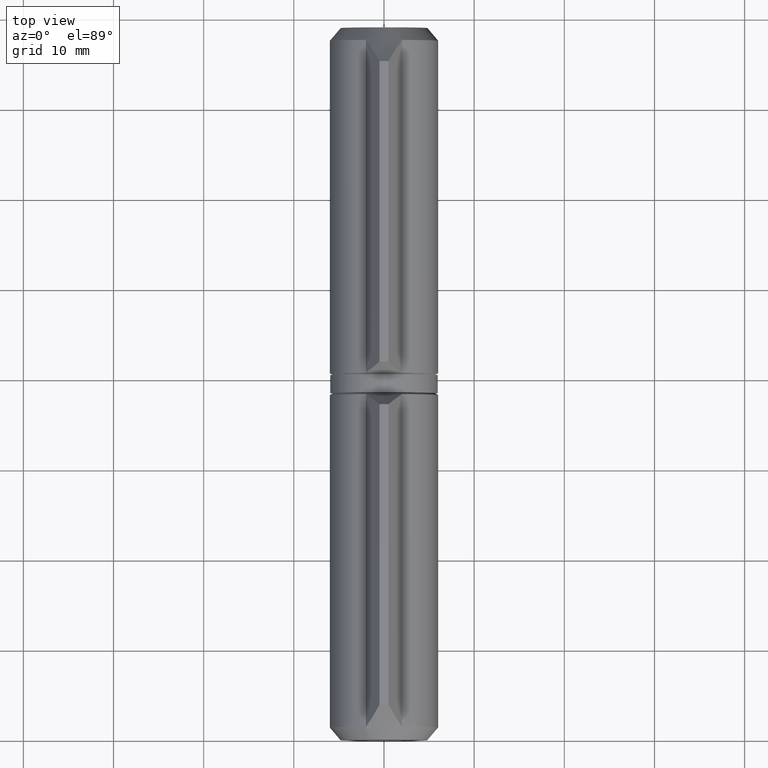
[diagram: clean part render]
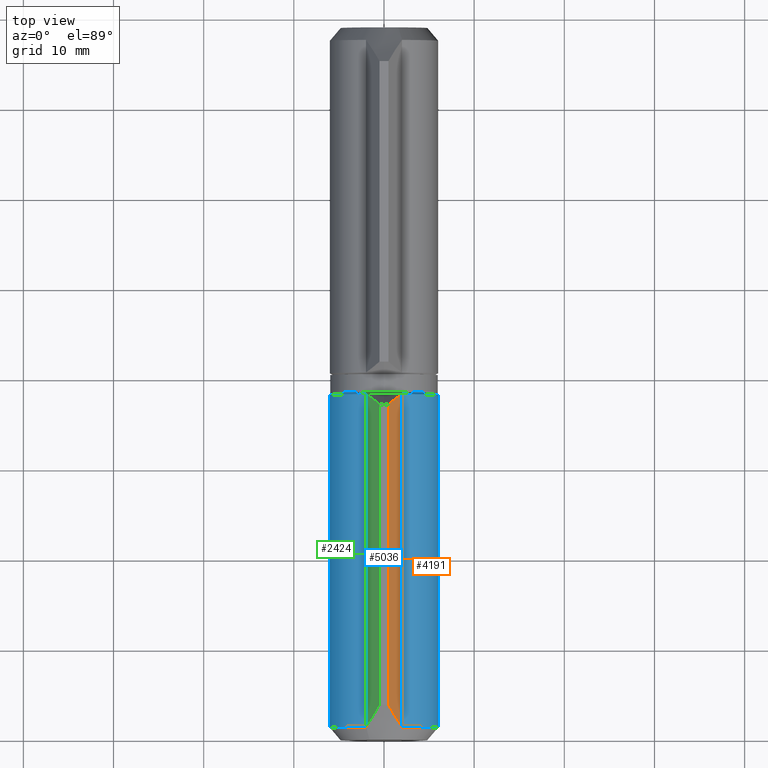
[diagram: same view with three faces highlighted in distinct colors, each labeled with its STEP entity id]
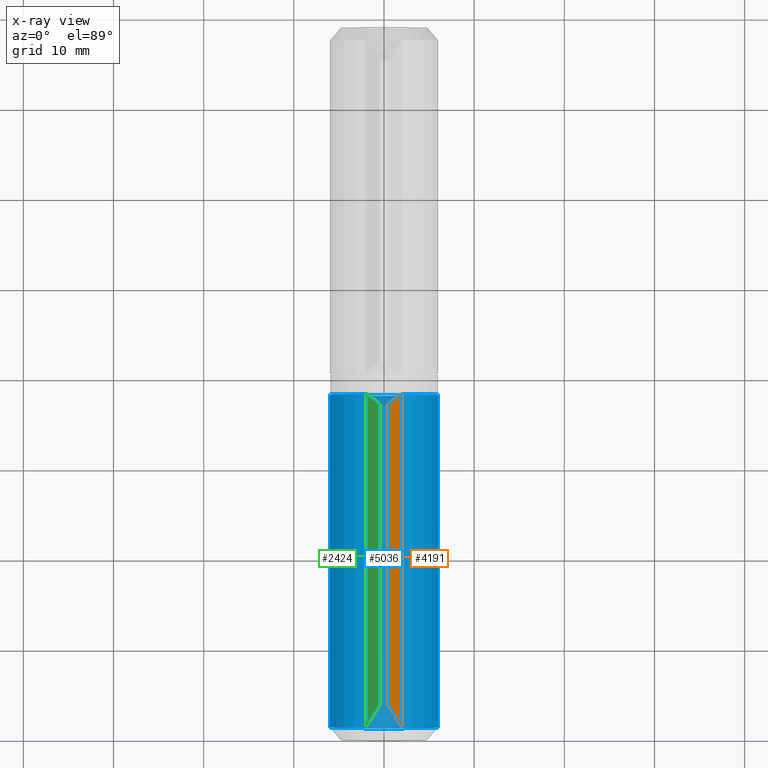
[diagram: x-ray of the same camera — body ghosted, the three highlighted faces saturated]
A machine part, top view with three faces highlighted in distinct colors.
The next image is the same camera in x-ray (body ghosted, the three faces saturated) — at least one of them is partly hidden behind the body in this view.
Their STEP definitions:

[orange] entity #4191 — the highlighted planar face has unit normal (0.8422, -0, 0.5392).
#448 = DIRECTION ( 'NONE',  ( -0.8422082845437647292, -2.431101475479423640E-15, -0.5391523026435565136 ) ) ;
#1212 = DIRECTION ( 'NONE',  ( 2.886579864025390439E-15, 1.000000000000000000, 0.000000000000000000 ) ) ;
#2138 = EDGE_CURVE ( 'NONE', #3184, #15834, #14271, .T. ) ;
#2361 = CARTESIAN_POINT ( 'NONE',  ( -0.4999999999998929745, 37.13817186473968235, -8.000000000000000000 ) ) ;
#2574 = VECTOR ( 'NONE', #1212, 1000.000000000000000 ) ;
#3168 = VERTEX_POINT ( 'NONE', #11890 ) ;
#3184 = VERTEX_POINT ( 'NONE', #2361 ) ;
#3199 = CARTESIAN_POINT ( 'NONE',  ( -0.9802601912863274647, 2.959338506171334870, -7.249786915766362583 ) ) ;
#4191 = ADVANCED_FACE ( 'NONE', ( #15868 ), #11483, .T. ) ;
#5039 = DIRECTION ( 'NONE',  ( 2.886579864025390439E-15, 1.000000000000000000, 0.000000000000000000 ) ) ;
#5494 = ORIENTED_EDGE ( 'NONE', *, *, #6073, .T. ) ;
#5655 = B_SPLINE_CURVE_WITH_KNOTS ( 'NONE', 3,
 ( #11503, #6063, #15628, #3199, #6004, #10129 ),
 .UNSPECIFIED., .F., .F.,
 ( 4, 2, 4 ),
 ( 0.008838318793687776481, 0.01068355474211885037, 0.01252879069054992252 ),
 .UNSPECIFIED. ) ;
#6004 = CARTESIAN_POINT ( 'NONE',  ( -0.7382496403727297762, 3.374371863819324524, -7.627830911733834540 ) ) ;
#6063 = CARTESIAN_POINT ( 'NONE',  ( -1.732366231721786720, 1.768573839175688667, -6.074924200714716171 ) ) ;
#6073 = EDGE_CURVE ( 'NONE', #3168, #15834, #11133, .T. ) ;
#7486 = AXIS2_PLACEMENT_3D ( 'NONE', #10055, #448, #8856 ) ;
#7696 = ORIENTED_EDGE ( 'NONE', *, *, #8947, .F. ) ;
#8386 = CARTESIAN_POINT ( 'NONE',  ( -1.744886245639352795, 38.13405865907720482, -6.055366722443388028 ) ) ;
#8472 = CARTESIAN_POINT ( 'NONE',  ( -0.4999999999999889533, 3.797242437181355790, -8.000000000000000000 ) ) ;
#8856 = DIRECTION ( 'NONE',  ( -0.5391523026435564026, -1.556306180453832801E-15, 0.8422082845437646181 ) ) ;
#8913 = VERTEX_POINT ( 'NONE', #8472 ) ;
#8947 = EDGE_CURVE ( 'NONE', #3168, #8913, #5655, .T. ) ;
#9585 = CARTESIAN_POINT ( 'NONE',  ( -0.9926046760006252967, 37.55623749635820019, -7.230503631166176781 ) ) ;
#9643 = CARTESIAN_POINT ( 'NONE',  ( -0.4999999999998929745, 37.13817186473968235, -8.000000000000000000 ) ) ;
#10055 = CARTESIAN_POINT ( 'NONE',  ( -2.000000000000011102, -4.635766604146771996, -5.656854249492380582 ) ) ;
#10129 = CARTESIAN_POINT ( 'NONE',  ( -0.4999999999999889533, 3.797242437181355790, -8.000000000000000000 ) ) ;
#11133 = LINE ( 'NONE', #17593, #2574 ) ;
#11285 = EDGE_LOOP ( 'NONE', ( #13899, #16266, #7696, #5494 ) ) ;
#11398 = EDGE_CURVE ( 'NONE', #8913, #3184, #15989, .T. ) ;
#11483 = PLANE ( 'NONE',  #7486 ) ;
#11503 = CARTESIAN_POINT ( 'NONE',  ( -1.999999999999988676, 1.406935711111334752, -5.656854249492380582 ) ) ;
#11890 = CARTESIAN_POINT ( 'NONE',  ( -1.999999999999988676, 1.406935711111334752, -5.656854249492380582 ) ) ;
#12516 = CARTESIAN_POINT ( 'NONE',  ( -1.492068899039618035, 37.94791329163282256, -6.450291983336573054 ) ) ;
#13000 = VECTOR ( 'NONE', #5039, 1000.000000000000000 ) ;
#13818 = CARTESIAN_POINT ( 'NONE',  ( -1.999999999999778399, 38.30188470857358851, -5.656854249492551112 ) ) ;
#13899 = ORIENTED_EDGE ( 'NONE', *, *, #2138, .F. ) ;
#14271 = B_SPLINE_CURVE_WITH_KNOTS ( 'NONE', 3,
 ( #9643, #17782, #9585, #12516, #8386, #13818 ),
 .UNSPECIFIED., .F., .F.,
 ( 4, 2, 4 ),
 ( 0.005113689090515845942, 0.006620539657671364354, 0.008127390224826882767 ),
 .UNSPECIFIED. ) ;
#14559 = CARTESIAN_POINT ( 'NONE',  ( -0.5000000000000114353, -4.635766604146749792, -8.000000000000000000 ) ) ;
#15628 = CARTESIAN_POINT ( 'NONE',  ( -1.477437871094689159, 2.156688273819025614, -6.473147070639559963 ) ) ;
#15834 = VERTEX_POINT ( 'NONE', #17012 ) ;
#15868 = FACE_OUTER_BOUND ( 'NONE', #11285, .T. ) ;
#15989 = LINE ( 'NONE', #14559, #13000 ) ;
#16266 = ORIENTED_EDGE ( 'NONE', *, *, #11398, .F. ) ;
#17012 = CARTESIAN_POINT ( 'NONE',  ( -1.999999999999778399, 38.30188470857358851, -5.656854249492551112 ) ) ;
#17593 = CARTESIAN_POINT ( 'NONE',  ( -2.000000000000011102, -4.635766604146771996, -5.656854249492380582 ) ) ;
#17782 = CARTESIAN_POINT ( 'NONE',  ( -0.7454960382220870985, 37.35030665201630740, -7.616511334182512805 ) ) ;

[blue] entity #5036 — the highlighted cylindrical surface (partial cylindrical patch) has radius 6 mm, axis along (0, -1, -0).
#134 = DIRECTION ( 'NONE',  ( 0.000000000000000000, 0.000000000000000000, -1.000000000000000000 ) ) ;
#139 = CIRCLE ( 'NONE', #13255, 6.000000000000000888 ) ;
#1212 = DIRECTION ( 'NONE',  ( 2.886579864025390439E-15, 1.000000000000000000, 0.000000000000000000 ) ) ;
#2133 = EDGE_LOOP ( 'NONE', ( #7924, #10059, #14827, #14857 ) ) ;
#2279 = DIRECTION ( 'NONE',  ( -2.886579864025390439E-15, -1.000000000000000000, 0.000000000000000000 ) ) ;
#2574 = VECTOR ( 'NONE', #1212, 1000.000000000000000 ) ;
#3168 = VERTEX_POINT ( 'NONE', #11890 ) ;
#5036 = ADVANCED_FACE ( 'NONE', ( #13742 ), #6477, .T. ) ;
#5931 = EDGE_CURVE ( 'NONE', #17117, #15834, #9254, .T. ) ;
#6073 = EDGE_CURVE ( 'NONE', #3168, #15834, #11133, .T. ) ;
#6418 = CARTESIAN_POINT ( 'NONE',  ( 4.061232293672248003E-15, 1.406935711111340526, 7.638569130923967327E-18 ) ) ;
#6477 = CYLINDRICAL_SURFACE ( 'NONE', #6709, 6.000000000000000888 ) ;
#6619 = CARTESIAN_POINT ( 'NONE',  ( 2.000000000000112799, 38.30188470857351035, -5.656854249492381470 ) ) ;
#6709 = AXIS2_PLACEMENT_3D ( 'NONE', #15236, #14051, #134 ) ;
#7099 = VERTEX_POINT ( 'NONE', #14867 ) ;
#7761 = CARTESIAN_POINT ( 'NONE',  ( 1.105614491539904786E-13, 38.30188470857351035, 0.000000000000000000 ) ) ;
#7852 = VECTOR ( 'NONE', #15640, 1000.000000000000000 ) ;
#7924 = ORIENTED_EDGE ( 'NONE', *, *, #15440, .T. ) ;
#8987 = DIRECTION ( 'NONE',  ( 0.000000000000000000, 0.000000000000000000, 1.000000000000000000 ) ) ;
#9078 = CARTESIAN_POINT ( 'NONE',  ( 1.999999999999988676, -4.635766604146726699, -5.656854249492381470 ) ) ;
#9254 = CIRCLE ( 'NONE', #17701, 6.000000000000000888 ) ;
#9452 = EDGE_CURVE ( 'NONE', #3168, #7099, #139, .T. ) ;
#10059 = ORIENTED_EDGE ( 'NONE', *, *, #5931, .T. ) ;
#11133 = LINE ( 'NONE', #17593, #2574 ) ;
#11869 = DIRECTION ( 'NONE',  ( 0.000000000000000000, 0.000000000000000000, -1.000000000000000000 ) ) ;
#11890 = CARTESIAN_POINT ( 'NONE',  ( -1.999999999999988676, 1.406935711111334752, -5.656854249492380582 ) ) ;
#13255 = AXIS2_PLACEMENT_3D ( 'NONE', #6418, #17237, #8987 ) ;
#13742 = FACE_OUTER_BOUND ( 'NONE', #2133, .T. ) ;
#14051 = DIRECTION ( 'NONE',  ( -2.886579864025390439E-15, -1.000000000000000000, 0.000000000000000000 ) ) ;
#14827 = ORIENTED_EDGE ( 'NONE', *, *, #6073, .F. ) ;
#14857 = ORIENTED_EDGE ( 'NONE', *, *, #9452, .T. ) ;
#14867 = CARTESIAN_POINT ( 'NONE',  ( 2.000000000000011102, 1.406935711111346743, -5.656854249492381470 ) ) ;
#15102 = LINE ( 'NONE', #9078, #7852 ) ;
#15236 = CARTESIAN_POINT ( 'NONE',  ( 1.111333247649786998E-13, 38.50000000000036238, 0.000000000000000000 ) ) ;
#15440 = EDGE_CURVE ( 'NONE', #7099, #17117, #15102, .T. ) ;
#15640 = DIRECTION ( 'NONE',  ( 2.886579864025390439E-15, 1.000000000000000000, 0.000000000000000000 ) ) ;
#15834 = VERTEX_POINT ( 'NONE', #17012 ) ;
#17012 = CARTESIAN_POINT ( 'NONE',  ( -1.999999999999778399, 38.30188470857358851, -5.656854249492551112 ) ) ;
#17117 = VERTEX_POINT ( 'NONE', #6619 ) ;
#17237 = DIRECTION ( 'NONE',  ( 2.886579864025390439E-15, 1.000000000000000000, 5.429224001209139842E-18 ) ) ;
#17593 = CARTESIAN_POINT ( 'NONE',  ( -2.000000000000011102, -4.635766604146771996, -5.656854249492380582 ) ) ;
#17701 = AXIS2_PLACEMENT_3D ( 'NONE', #7761, #2279, #11869 ) ;

[green] entity #2424 — the highlighted planar face has unit normal (-0.8422, 0, 0.5392).
#328 = DIRECTION ( 'NONE',  ( 0.8422082845437646181, 2.431101475479423246E-15, -0.5391523026435565136 ) ) ;
#352 = CARTESIAN_POINT ( 'NONE',  ( 1.478309809973239464, 2.155322241250058113, -6.471785017387474248 ) ) ;
#509 = EDGE_CURVE ( 'NONE', #17117, #8517, #5649, .T. ) ;
#783 = CARTESIAN_POINT ( 'NONE',  ( 2.000000000000112799, 38.30188470857351035, -5.656854249492381470 ) ) ;
#855 = CARTESIAN_POINT ( 'NONE',  ( 0.4999999999999886202, -4.635766604146749792, -8.000000000000000000 ) ) ;
#1585 = AXIS2_PLACEMENT_3D ( 'NONE', #1820, #328, #12706 ) ;
#1820 = CARTESIAN_POINT ( 'NONE',  ( 1.999999999999988676, -4.635766604146726699, -5.656854249492381470 ) ) ;
#2424 = ADVANCED_FACE ( 'NONE', ( #7972 ), #11358, .T. ) ;
#2432 = DIRECTION ( 'NONE',  ( 2.886579864025390439E-15, 1.000000000000000000, 0.000000000000000000 ) ) ;
#3386 = EDGE_LOOP ( 'NONE', ( #12923, #7947, #8167, #5551 ) ) ;
#3508 = CARTESIAN_POINT ( 'NONE',  ( 1.488354899470264225, 37.96530004977623918, -6.456093611541701804 ) ) ;
#5057 = CARTESIAN_POINT ( 'NONE',  ( 0.5000000000001073586, 37.13817186473968235, -8.000000000000000000 ) ) ;
#5551 = ORIENTED_EDGE ( 'NONE', *, *, #8454, .T. ) ;
#5649 = B_SPLINE_CURVE_WITH_KNOTS ( 'NONE', 3,
 ( #783, #3508, #17150, #5057 ),
 .UNSPECIFIED., .F., .F.,
 ( 4, 4 ),
 ( 0.004651356345509574663, 0.007697544581436898369 ),
 .UNSPECIFIED. ) ;
#5793 = EDGE_CURVE ( 'NONE', #5981, #7099, #12250, .T. ) ;
#5942 = CARTESIAN_POINT ( 'NONE',  ( 0.9806260406199562851, 2.958706340473868046, -7.249215423558649007 ) ) ;
#5981 = VERTEX_POINT ( 'NONE', #13424 ) ;
#6619 = CARTESIAN_POINT ( 'NONE',  ( 2.000000000000112799, 38.30188470857351035, -5.656854249492381470 ) ) ;
#7099 = VERTEX_POINT ( 'NONE', #14867 ) ;
#7852 = VECTOR ( 'NONE', #15640, 1000.000000000000000 ) ;
#7947 = ORIENTED_EDGE ( 'NONE', *, *, #15440, .F. ) ;
#7972 = FACE_OUTER_BOUND ( 'NONE', #3386, .T. ) ;
#8167 = ORIENTED_EDGE ( 'NONE', *, *, #5793, .F. ) ;
#8454 = EDGE_CURVE ( 'NONE', #5981, #8517, #15383, .T. ) ;
#8517 = VERTEX_POINT ( 'NONE', #9099 ) ;
#9078 = CARTESIAN_POINT ( 'NONE',  ( 1.999999999999988676, -4.635766604146726699, -5.656854249492381470 ) ) ;
#9099 = CARTESIAN_POINT ( 'NONE',  ( 0.5000000000001073586, 37.13817186473968235, -8.000000000000000000 ) ) ;
#11358 = PLANE ( 'NONE',  #1585 ) ;
#12250 = B_SPLINE_CURVE_WITH_KNOTS ( 'NONE', 3,
 ( #15274, #16673, #5942, #352, #14088, #12662 ),
 .UNSPECIFIED., .F., .F.,
 ( 4, 2, 4 ),
 ( 0.01168881925991853248, 0.01352492976946371300, 0.01536104027900889353 ),
 .UNSPECIFIED. ) ;
#12662 = CARTESIAN_POINT ( 'NONE',  ( 2.000000000000011102, 1.406935711111346743, -5.656854249492381470 ) ) ;
#12706 = DIRECTION ( 'NONE',  ( -0.5391523026435565136, -1.556306180453832801E-15, -0.8422082845437646181 ) ) ;
#12923 = ORIENTED_EDGE ( 'NONE', *, *, #509, .F. ) ;
#13424 = CARTESIAN_POINT ( 'NONE',  ( 0.5000000000000112133, 3.797242437181358010, -8.000000000000000000 ) ) ;
#14088 = CARTESIAN_POINT ( 'NONE',  ( 1.734256403746345487, 1.766019758361793146, -6.071971568349912474 ) ) ;
#14867 = CARTESIAN_POINT ( 'NONE',  ( 2.000000000000011102, 1.406935711111346743, -5.656854249492381470 ) ) ;
#15102 = LINE ( 'NONE', #9078, #7852 ) ;
#15274 = CARTESIAN_POINT ( 'NONE',  ( 0.5000000000000112133, 3.797242437181358010, -8.000000000000000000 ) ) ;
#15383 = LINE ( 'NONE', #855, #17536 ) ;
#15440 = EDGE_CURVE ( 'NONE', #7099, #17117, #15102, .T. ) ;
#15640 = DIRECTION ( 'NONE',  ( 2.886579864025390439E-15, 1.000000000000000000, 0.000000000000000000 ) ) ;
#16673 = CARTESIAN_POINT ( 'NONE',  ( 0.7384190029854087456, 3.374071261203303695, -7.627566350876263002 ) ) ;
#17117 = VERTEX_POINT ( 'NONE', #6619 ) ;
#17150 = CARTESIAN_POINT ( 'NONE',  ( 0.9916242746972068201, 37.56298772608022318, -7.232035113264359438 ) ) ;
#17536 = VECTOR ( 'NONE', #2432, 1000.000000000000000 ) ;